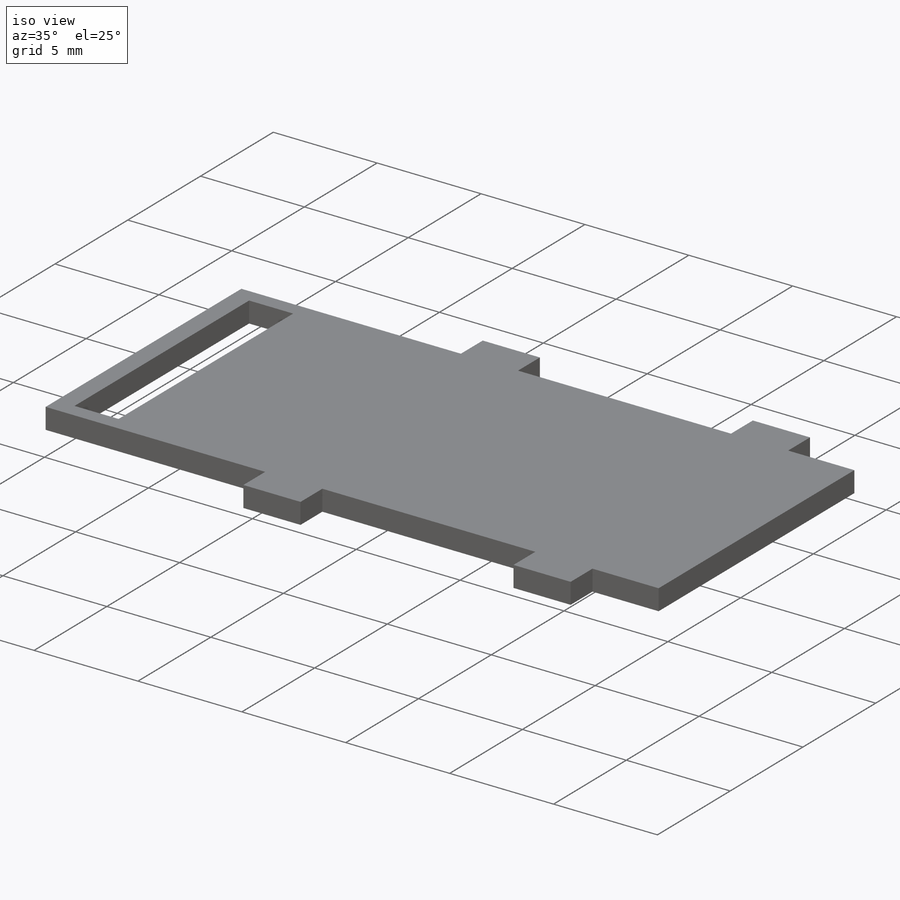
[diagram: iso view]
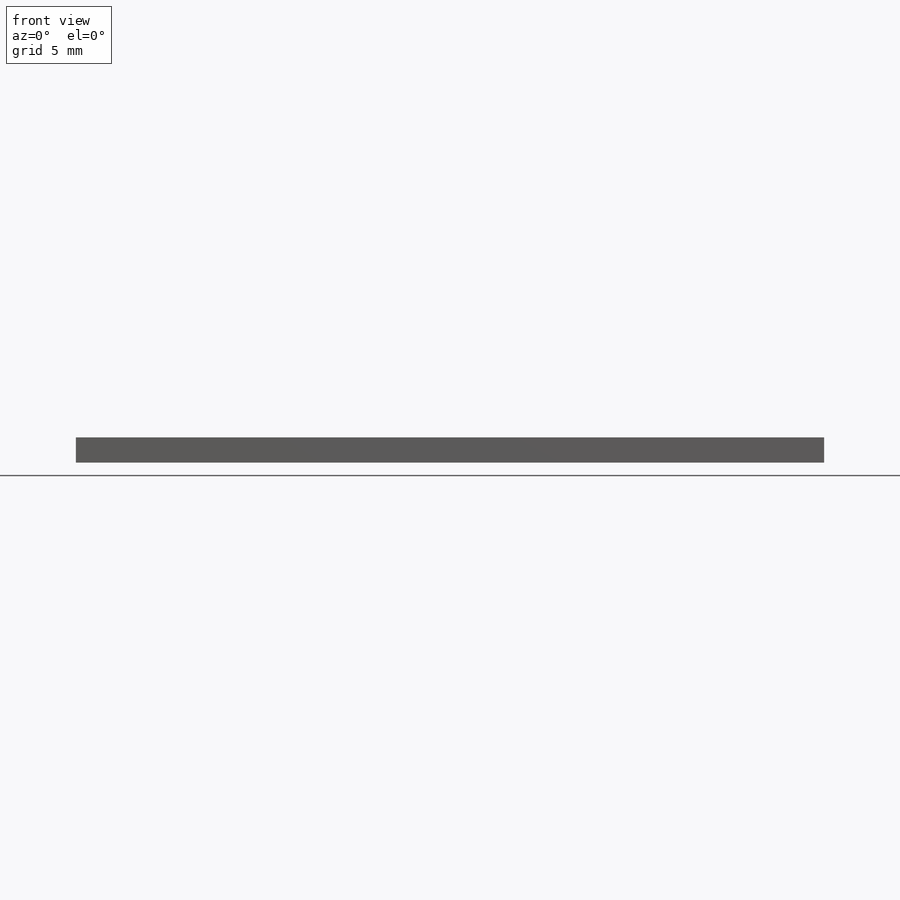
[diagram: front view]
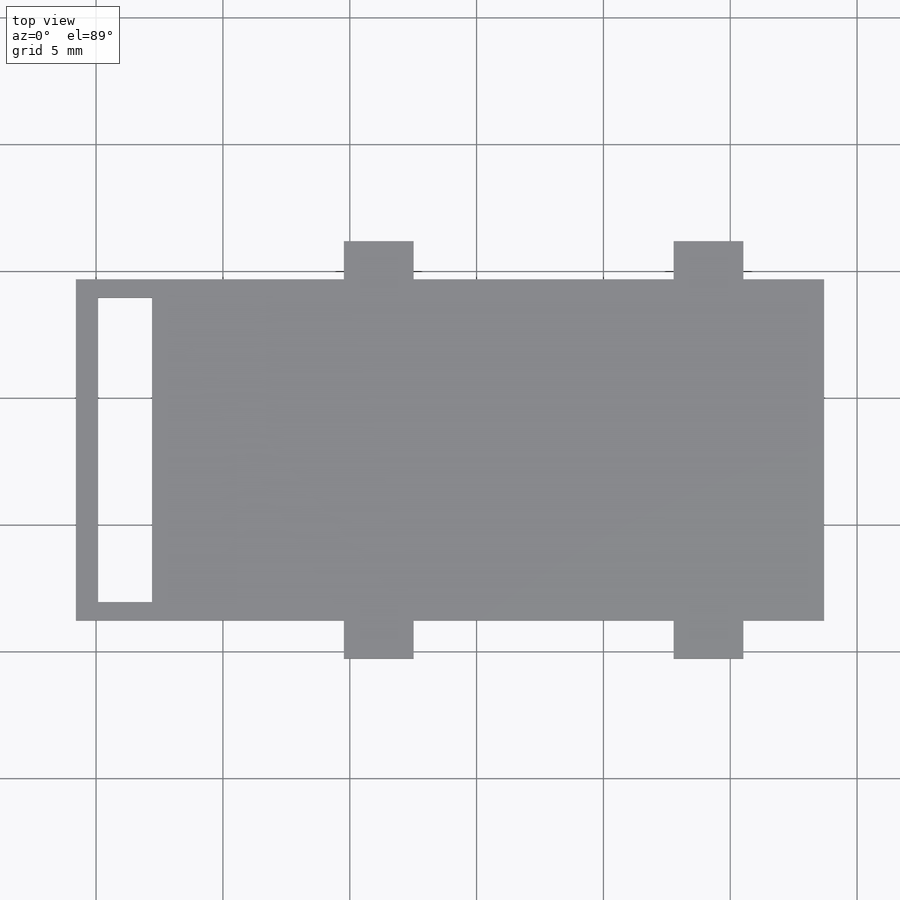
[diagram: top view]
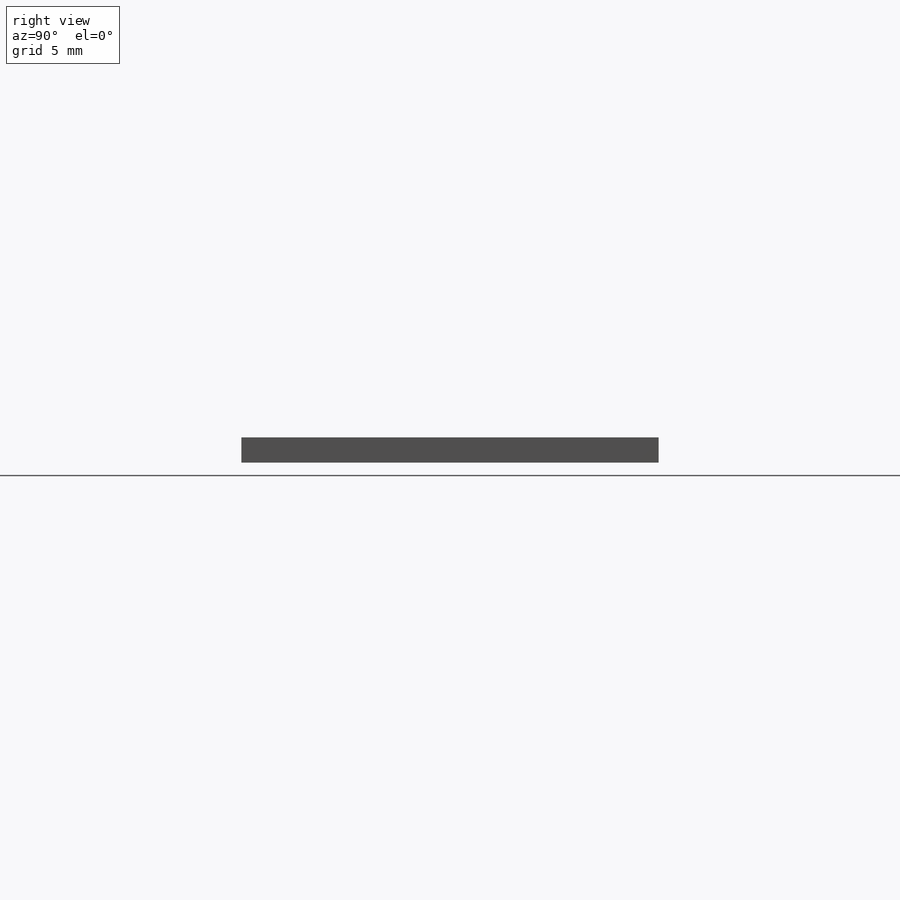
[diagram: right view]
SOLIDWORKS PART (.sldprt)
format: sldprt  version: not decoded by parser v0  size: 208,384 bytes
history: native  units: mm
features: sketch x3, extrude x2, material x1, cut_extrude x1 (+12 scaffold rows collapsed)
feature tree (19):
  scaffold x12  (default folders/planes/origin — collapsed)
  material  "Material <not specified>"
  sketch  "Sketch1"  dims[D1=13.45mm D2=29.5mm]
  sketch  "Sketch2"  dims[c1.D1=2.75mm c1.D2=10.565mm c1.D3=16.185mm c1.D4=1.5mm c1.D5=1.5mm c1.D6=2.75mm c1.D7=10.565mm c1.D8=6.0mm c1.D9=1.5mm c2.D8=2.0]
  extrude  "Boss-Extrude1"  Depth=1mm
  extrude  "Boss-Extrude2"  Depth=1mm
  sketch  "Sketch3"  dims[D1=2.12mm D2=12.0mm D3=0.725mm D4=0.725mm D5=0.88mm]
  cut_extrude  "adapter_PCB_hole"  Depth=1mm
decode coverage: 6 of 6 modeling features carry decoded parameters
note: suppression state not decoded; provenance and decode notes live in map.json
